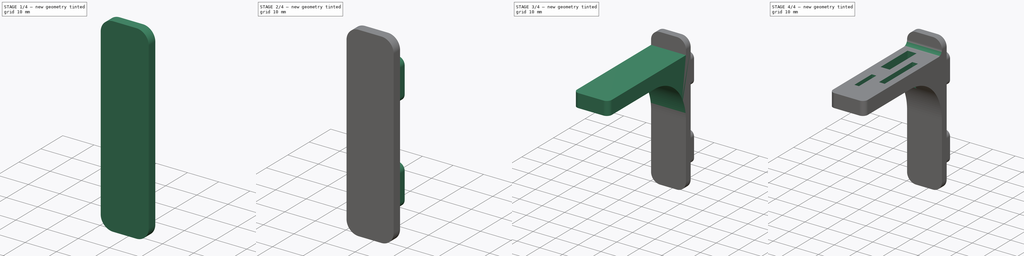
[diagram: build sequence overview — one tinted view per stage of 4, left to right]
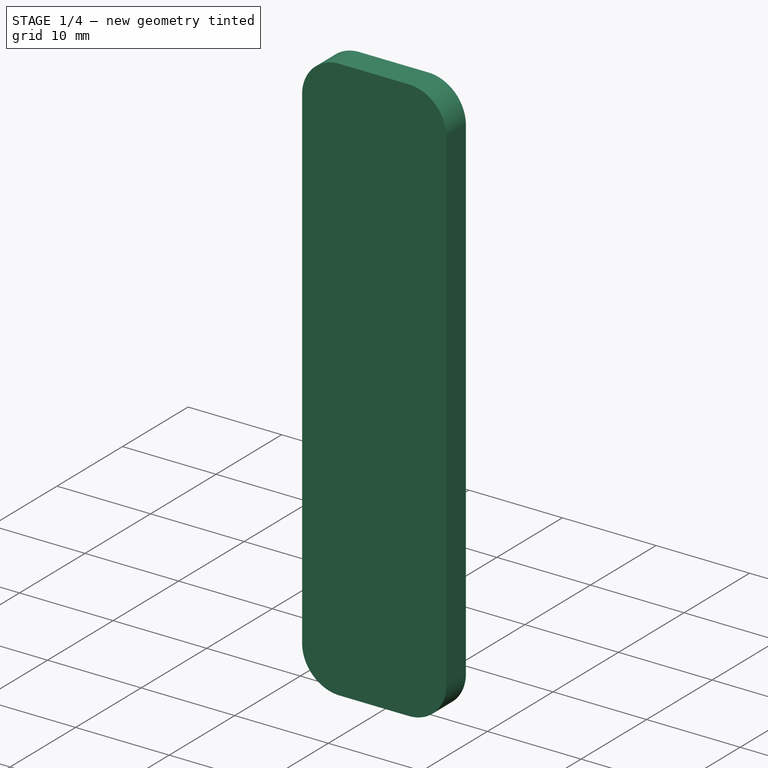
[diagram: stage 1 of 4 — iso view after this stage's code; geometry added in this stage tinted green]
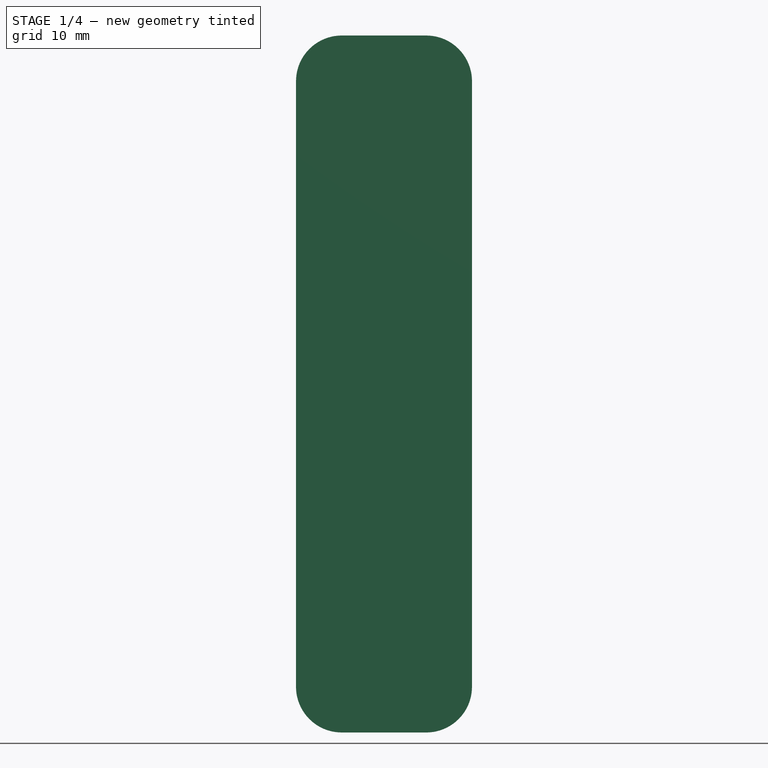
[diagram: stage 1 of 4 — front view after this stage's code; geometry added in this stage tinted green]
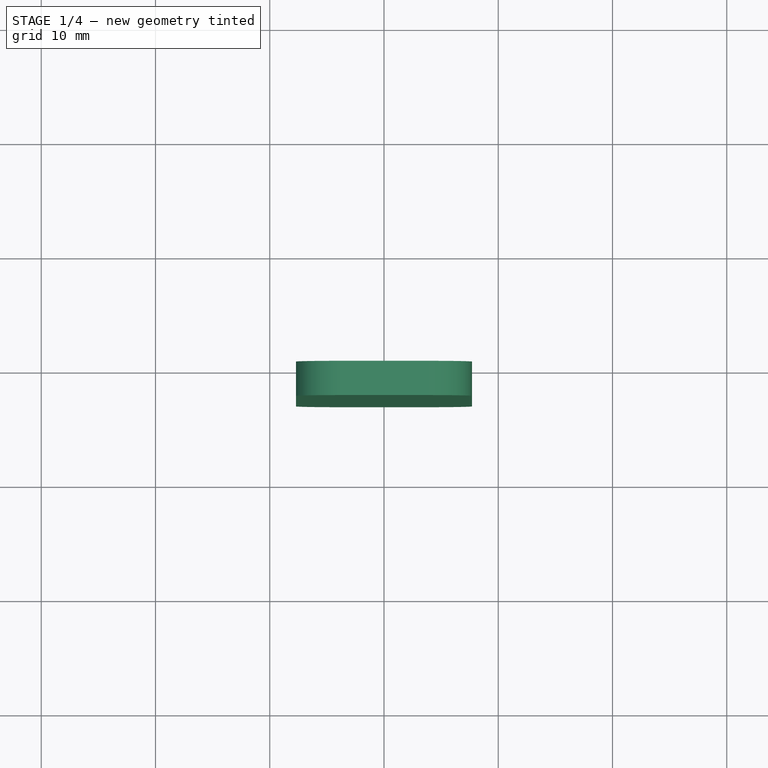
[diagram: stage 1 of 4 — top view after this stage's code; geometry added in this stage tinted green]
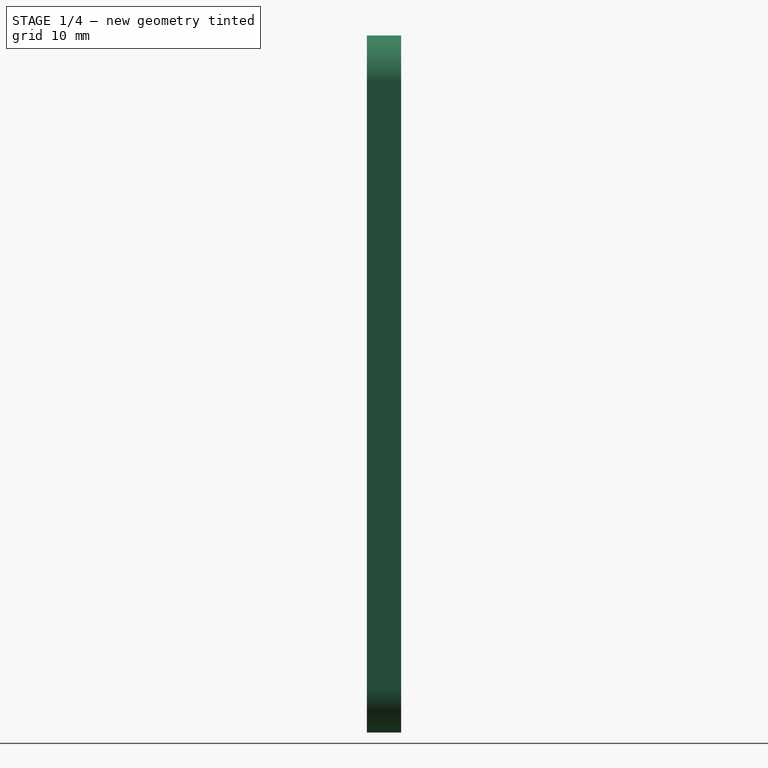
[diagram: stage 1 of 4 — right view after this stage's code; geometry added in this stage tinted green]
FCSTD DOCUMENT  (FreeCAD 1.0R39109 (Git))
Label: 01_Wrench_Holder_v2
License: All rights reserved
LicenseURL: https://en.wikipedia.org/wiki/All_rights_reserved
objects: Sketcher::SketchObject×5, PartDesign::Pad×4, PartDesign::Fillet×4, PartDesign::Pocket×1, PartDesign::Body×1
note: 38 computed .brp shape members not serialized (recipe doc carries the construction recipe); baked Part::Feature solids carry a one-line shape summary decoded from their .brp

FEATURE [Sketcher::SketchObject] Sketch
  ArcFitTolerance = 1e-06
  AttachmentSupport = -> [XZ_Plane]
  FullyConstrained = true
  MakeInternals = false
  MapMode = 5
  Placement = pos=(0,0,0) rot=(1,0,0;1.5708rad)
  sketch-geometry (4):
    g0: LineSegment StartX=-7.7 StartY=30.5 StartZ=0 EndX=-7.7 EndY=-30.5 EndZ=0
    g1: LineSegment StartX=-7.7 StartY=-30.5 StartZ=0 EndX=7.7 EndY=-30.5 EndZ=0
    g2: LineSegment StartX=7.7 StartY=-30.5 StartZ=0 EndX=7.7 EndY=30.5 EndZ=0
    g3: LineSegment StartX=7.7 StartY=30.5 StartZ=0 EndX=-7.7 EndY=30.5 EndZ=0
  constraints (12):
    c: Coincident(g0,g1)
    c: Coincident(g1,g2)
    c: Coincident(g2,g3)
    c: Coincident(g3,g0)
    c: Vertical(g0)
    c: Vertical(g2)
    c: Horizontal(g1)
    c: Horizontal(g3)
    c: Distance(g0,g2) = 15.4
    c: Distance(g1,g3) = 61
    c: DistanceY(g-1,g0) = 30.5
    c: DistanceX(g-1,g1) = 7.7
FEATURE [PartDesign::Pad] Pad
  Direction = (0,-1,2e-16)
  Length = 3
  Length2 = 10
  Placement = pos=(0,0,0) rot=(1,0,0;1.5708rad)
  Profile = -> Sketch
  ReferenceAxis = -> Sketch [N_Axis]
  Refine = true
  Suppressed = false
  Type = 0
FEATURE [PartDesign::Fillet] Fillet
  Base = -> Pad [Edge8,Edge1,Edge5,Edge2]
  BaseFeature = -> Pad
  Placement = pos=(0,0,0) rot=(1,0,0;1.5708rad)
  Radius = 4
  Refine = true
  SupportTransform = false
  Suppressed = false
  UseAllEdges = false
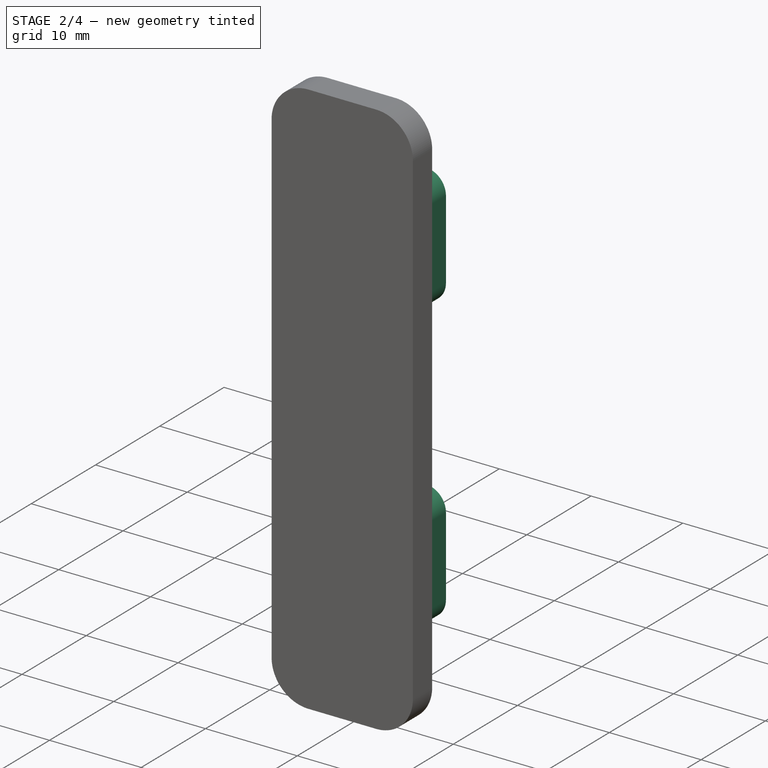
[diagram: stage 2 of 4 — iso view after this stage's code; geometry added in this stage tinted green]
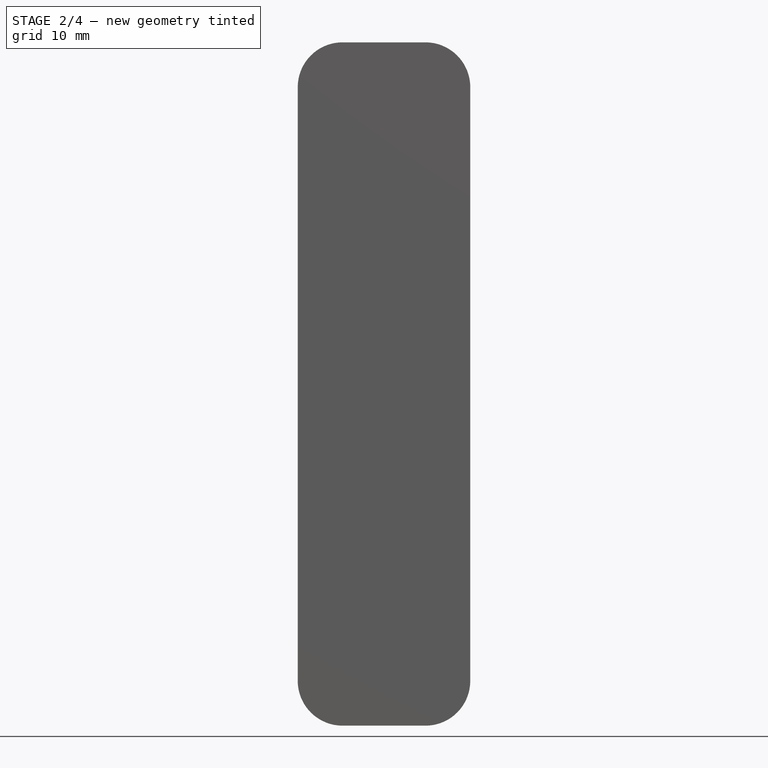
[diagram: stage 2 of 4 — front view after this stage's code; geometry added in this stage tinted green]
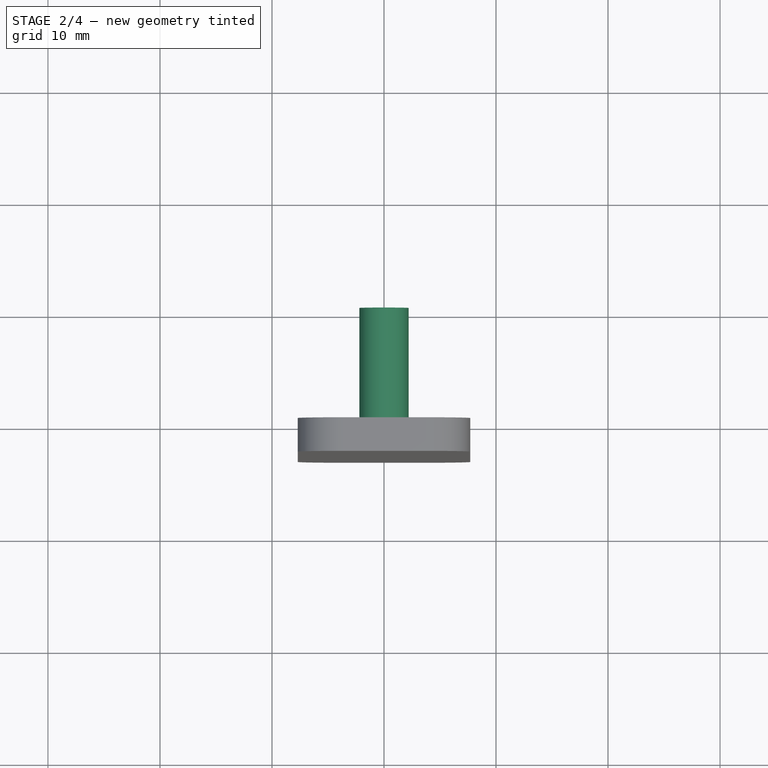
[diagram: stage 2 of 4 — top view after this stage's code; geometry added in this stage tinted green]
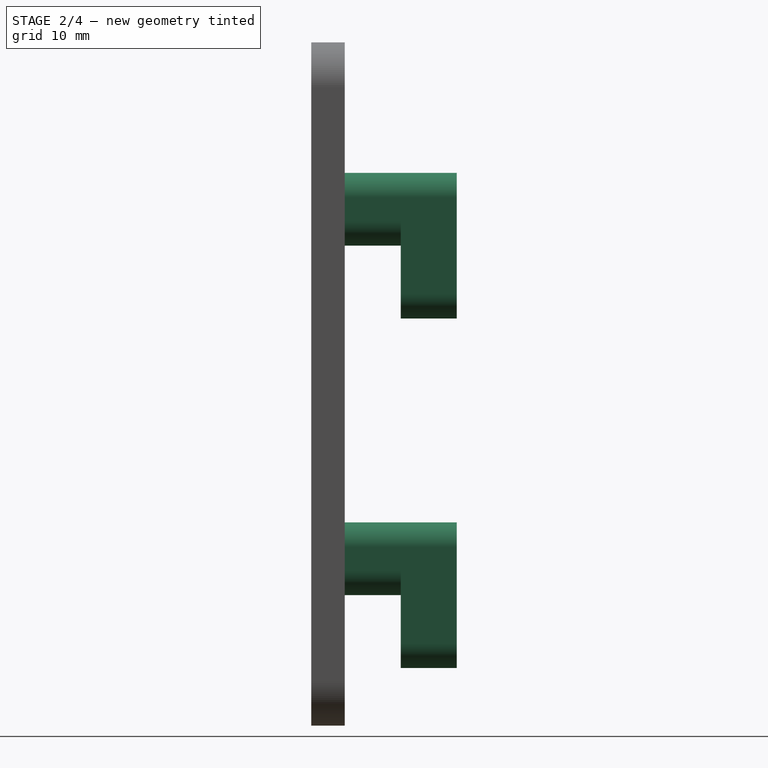
[diagram: stage 2 of 4 — right view after this stage's code; geometry added in this stage tinted green]
FEATURE [Sketcher::SketchObject] Sketch001
  ArcFitTolerance = 1e-06
  AttachmentSupport = -> [Fillet]
  FullyConstrained = true
  MakeInternals = false
  MapMode = 5
  Placement = pos=(0,0,0) rot=(-1,0,0;1.5708rad)
  sketch-geometry (12):
    g0: LineSegment StartX=-2.2 StartY=16.65 StartZ=0 EndX=-2.2 EndY=14.55 EndZ=0
    g1: LineSegment StartX=2.2 StartY=16.65 StartZ=0 EndX=2.2 EndY=14.55 EndZ=0
    g2: GeomPoint [constr] X=-1e-16 Y=16.65 Z=0
    g3: GeomPoint [constr] X=0 Y=14.55 Z=0
    g4: ArcOfCircle CenterX=-1e-16 CenterY=16.65 CenterZ=0 NormalX=0 NormalY=0 NormalZ=1 AngleXU=0 Radius=2.2 StartAngle=6e-16 EndAngle=3.14159
    g5: ArcOfCircle CenterX=0 CenterY=14.55 CenterZ=0 NormalX=0 NormalY=0 NormalZ=1 AngleXU=0 Radius=2.2 StartAngle=3.14159 EndAngle=6.28319
    g6: LineSegment StartX=-2.2 StartY=-14.55 StartZ=0 EndX=-2.2 EndY=-16.65 EndZ=0
    g7: LineSegment StartX=2.2 StartY=-14.55 StartZ=0 EndX=2.2 EndY=-16.65 EndZ=0
    g8: GeomPoint [constr] X=0 Y=-14.55 Z=0
    g9: GeomPoint [constr] X=1e-16 Y=-16.65 Z=0
    g10: ArcOfCircle CenterX=1e-16 CenterY=-16.65 CenterZ=0 NormalX=0 NormalY=0 NormalZ=1 AngleXU=0 Radius=2.2 StartAngle=3.14159 EndAngle=6.28319
    g11: ArcOfCircle CenterX=0 CenterY=-14.55 CenterZ=0 NormalX=0 NormalY=0 NormalZ=1 AngleXU=0 Radius=2.2 StartAngle=4.0087e-11 EndAngle=3.14159
  constraints (32):
    c: Distance(g0) = 2.1
    c: Vertical(g0)
    c: Distance(g1) = 2.1
    c: Vertical(g1)
    c: DistanceX(g0,g1) = 4.4
    c: Horizontal(g0,g2)
    c: Horizontal(g2,g1)
    c: Horizontal(g0,g3)
    c: DistanceX(g3,g-1) = 0
    c: DistanceY(g-1,g3) = 14.55
    c: Coincident(g0,g5)
    c: Coincident(g5,g1)
    c: Coincident(g4,g0)
    c: Coincident(g4,g1)
    c: Coincident(g4,g2)
    c: Coincident(g5,g3)
    c: Distance(g6) = 2.1
    c: Vertical(g6)
    c: Distance(g7) = 2.1
    c: Vertical(g7)
    c: DistanceX(g6,g7) = 4.4
    c: Horizontal(g6,g7)
    c: Horizontal(g8,g6)
    c: Horizontal(g9,g6)
    c: DistanceY(g8,g-1) = 14.55
    c: DistanceX(g-1,g8) = 0
    c: Coincident(g10,g6)
    c: Coincident(g10,g7)
    c: Coincident(g10,g9)
    c: Coincident(g11,g6)
    c: Coincident(g7,g11)
    c: Coincident(g11,g8)
FEATURE [PartDesign::Pad] Pad001
  BaseFeature = -> Fillet
  Direction = (0,1,2e-16)
  Length = 5
  Length2 = 10
  Placement = pos=(0,0,0) rot=(1,0,0;1.5708rad)
  Profile = -> Sketch001
  ReferenceAxis = -> Sketch001 [N_Axis]
  Refine = true
  Suppressed = false
  Type = 0
FEATURE [Sketcher::SketchObject] Sketch002
  ArcFitTolerance = 1e-06
  AttachmentSupport = -> [Pad001]
  FullyConstrained = true
  MakeInternals = false
  MapMode = 5
  Placement = pos=(0,5,0) rot=(-1,0,0;1.5708rad)
  sketch-geometry (12):
    g0: LineSegment StartX=-2.2 StartY=23.15 StartZ=0 EndX=-2.2 EndY=14.55 EndZ=0
    g1: LineSegment StartX=2.2 StartY=23.15 StartZ=0 EndX=2.2 EndY=14.55 EndZ=0
    g2: GeomPoint [constr] X=-1e-16 Y=23.15 Z=0
    g3: GeomPoint [constr] X=0 Y=14.55 Z=0
    g4: ArcOfCircle CenterX=0 CenterY=14.55 CenterZ=0 NormalX=0 NormalY=0 NormalZ=1 AngleXU=0 Radius=2.2 StartAngle=3.14159 EndAngle=6.28319
    g5: ArcOfCircle CenterX=-1e-16 CenterY=23.15 CenterZ=0 NormalX=0 NormalY=0 NormalZ=1 AngleXU=0 Radius=2.2 StartAngle=4.53e-13 EndAngle=3.14159
    g6: LineSegment StartX=-2.2 StartY=-8.05 StartZ=0 EndX=-2.2 EndY=-16.65 EndZ=0
    g7: LineSegment StartX=2.2 StartY=-8.05 StartZ=0 EndX=2.2 EndY=-16.65 EndZ=0
    g8: GeomPoint [constr] X=0 Y=-8.05 Z=0
    g9: GeomPoint [constr] X=2e-16 Y=-16.65 Z=0
    g10: ArcOfCircle CenterX=0 CenterY=-8.05 CenterZ=0 NormalX=0 NormalY=0 NormalZ=1 AngleXU=0 Radius=2.2 StartAngle=1e-16 EndAngle=3.14159
    g11: ArcOfCircle CenterX=2e-16 CenterY=-16.65 CenterZ=0 NormalX=0 NormalY=0 NormalZ=1 AngleXU=0 Radius=2.2 StartAngle=3.14159 EndAngle=6.28319
  constraints (32):
    c: Distance(g0) = 8.6
    c: Vertical(g0)
    c: Distance(g1) = 8.6
    c: Vertical(g1)
    c: DistanceX(g0,g1) = 4.4
    c: Horizontal(g0,g1)
    c: Horizontal(g0,g2)
    c: Horizontal(g0,g3)
    c: DistanceY(g-1,g3) = 14.55
    c: DistanceX(g-1,g3) = 0
    c: Coincident(g4,g0)
    c: Coincident(g1,g4)
    c: Coincident(g4,g3)
    c: Coincident(g5,g0)
    c: Coincident(g5,g1)
    c: Coincident(g5,g2)
    c: Distance(g6) = 8.6
    c: Vertical(g6)
    c: Distance(g7) = 8.6
    c: Vertical(g7)
    c: Horizontal(g6,g7)
    c: DistanceX(g6,g7) = 4.4
    c: Horizontal(g6,g8)
    c: Horizontal(g6,g9)
    c: DistanceX(g-1,g8) = 0
    c: Coincident(g10,g6)
    c: Coincident(g10,g7)
    c: Coincident(g10,g8)
    c: DistanceY(g9,g-1) = 16.65
    c: Coincident(g11,g6)
    c: Coincident(g11,g7)
    c: Coincident(g11,g9)
FEATURE [PartDesign::Pad] Pad002
  BaseFeature = -> Pad001
  Direction = (0,1,2e-16)
  Length = 5
  Length2 = 10
  Placement = pos=(0,0,0) rot=(1,0,0;1.5708rad)
  Profile = -> Sketch002
  ReferenceAxis = -> Sketch002 [N_Axis]
  Refine = true
  Suppressed = false
  Type = 0
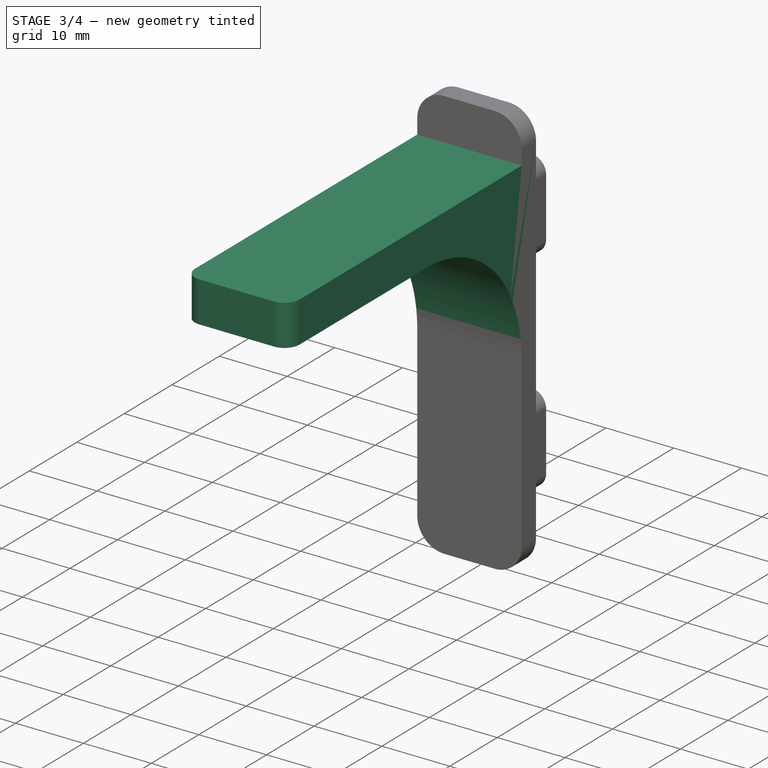
[diagram: stage 3 of 4 — iso view after this stage's code; geometry added in this stage tinted green]
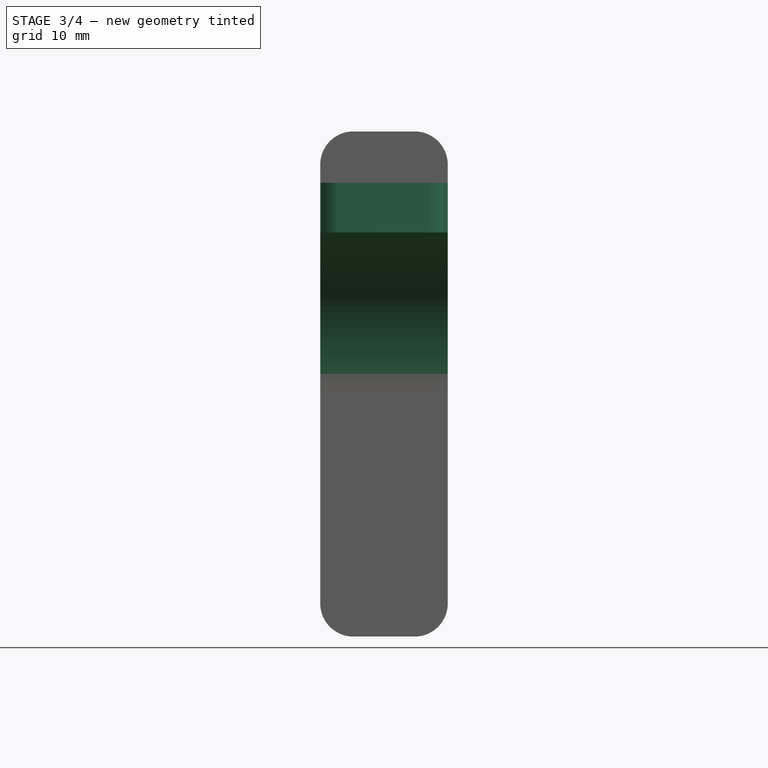
[diagram: stage 3 of 4 — front view after this stage's code; geometry added in this stage tinted green]
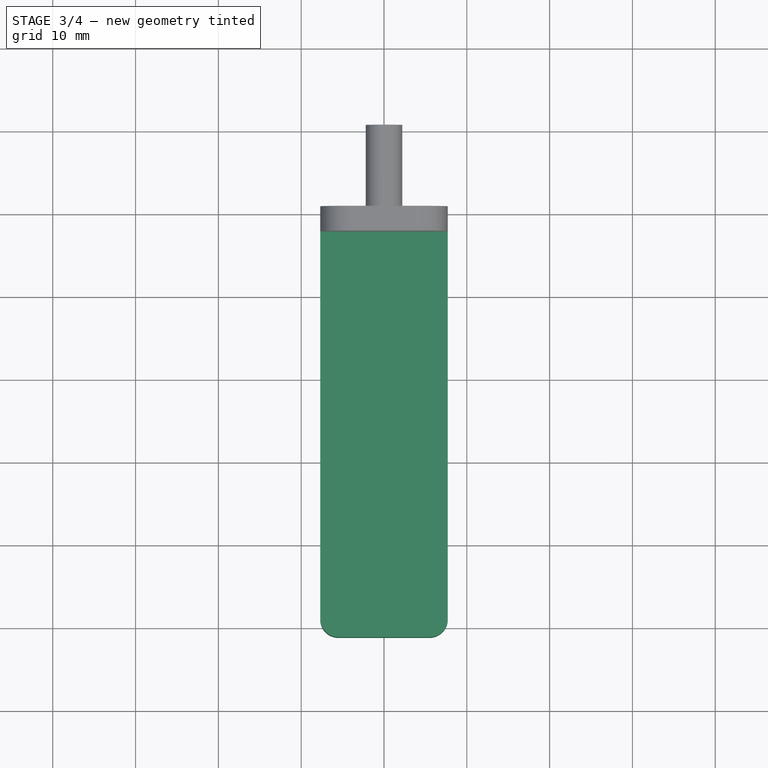
[diagram: stage 3 of 4 — top view after this stage's code; geometry added in this stage tinted green]
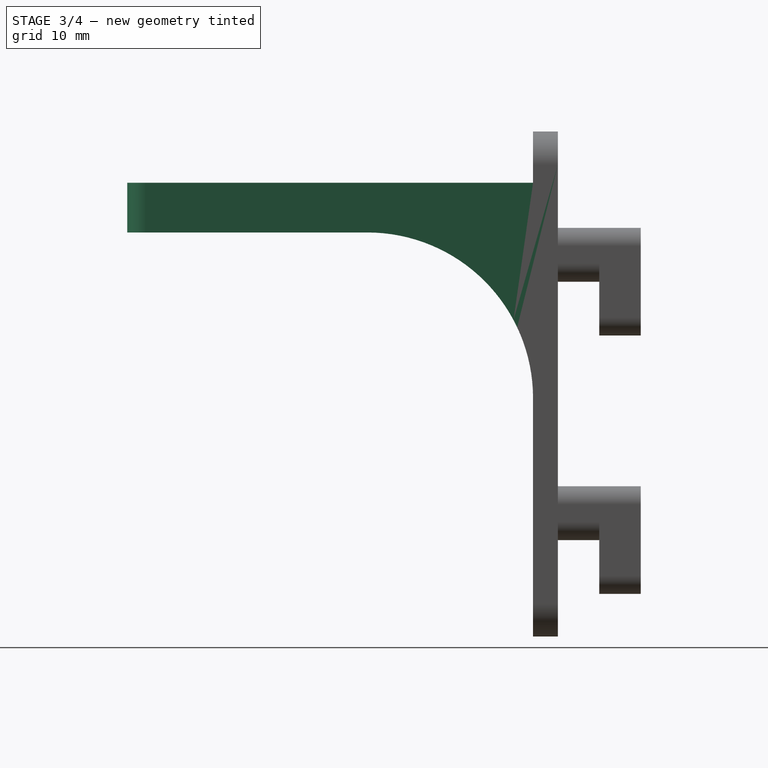
[diagram: stage 3 of 4 — right view after this stage's code; geometry added in this stage tinted green]
FEATURE [Sketcher::SketchObject] Sketch003
  ArcFitTolerance = 1e-06
  AttachmentSupport = -> [Pad002]
  FullyConstrained = true
  MakeInternals = false
  MapMode = 5
  Placement = pos=(0,-3,0) rot=(1,0,0;1.5708rad)
  sketch-geometry (4):
    g0: LineSegment StartX=-7.7 StartY=24.3 StartZ=0 EndX=-7.7 EndY=18.3 EndZ=0
    g1: LineSegment StartX=-7.7 StartY=18.3 StartZ=0 EndX=7.7 EndY=18.3 EndZ=0
    g2: LineSegment StartX=7.7 StartY=18.3 StartZ=0 EndX=7.7 EndY=24.3 EndZ=0
    g3: LineSegment StartX=7.7 StartY=24.3 StartZ=0 EndX=-7.7 EndY=24.3 EndZ=0
  constraints (12):
    c: Coincident(g0,g1)
    c: Coincident(g1,g2)
    c: Coincident(g2,g3)
    c: Coincident(g3,g0)
    c: Vertical(g0)
    c: Vertical(g2)
    c: Horizontal(g1)
    c: Horizontal(g3)
    c: Distance(g0,g2) = 15.4
    c: Distance(g1,g3) = 6
    c: DistanceY(g-1,g0) = 18.3
    c: DistanceX(g0,g-1) = 7.7
FEATURE [PartDesign::Pad] Pad003
  BaseFeature = -> Pad002
  Direction = (0,-1,2e-16)
  Length = 49
  Length2 = 10
  Placement = pos=(0,0,0) rot=(1,0,0;1.5708rad)
  Profile = -> Sketch003
  ReferenceAxis = -> Sketch003 [N_Axis]
  Refine = true
  Suppressed = false
  Type = 0
FEATURE [PartDesign::Fillet] Fillet001
  Base = -> Pad003 [Edge68,Edge67]
  BaseFeature = -> Pad003
  Placement = pos=(0,0,0) rot=(1,0,0;1.5708rad)
  Radius = 2.2
  Refine = true
  SupportTransform = false
  Suppressed = false
  UseAllEdges = false
FEATURE [PartDesign::Fillet] Fillet002
  Base = -> Fillet001 [Edge29]
  BaseFeature = -> Fillet001
  Placement = pos=(0,0,0) rot=(1,0,0;1.5708rad)
  Radius = 20
  Refine = true
  SupportTransform = false
  Suppressed = false
  UseAllEdges = false
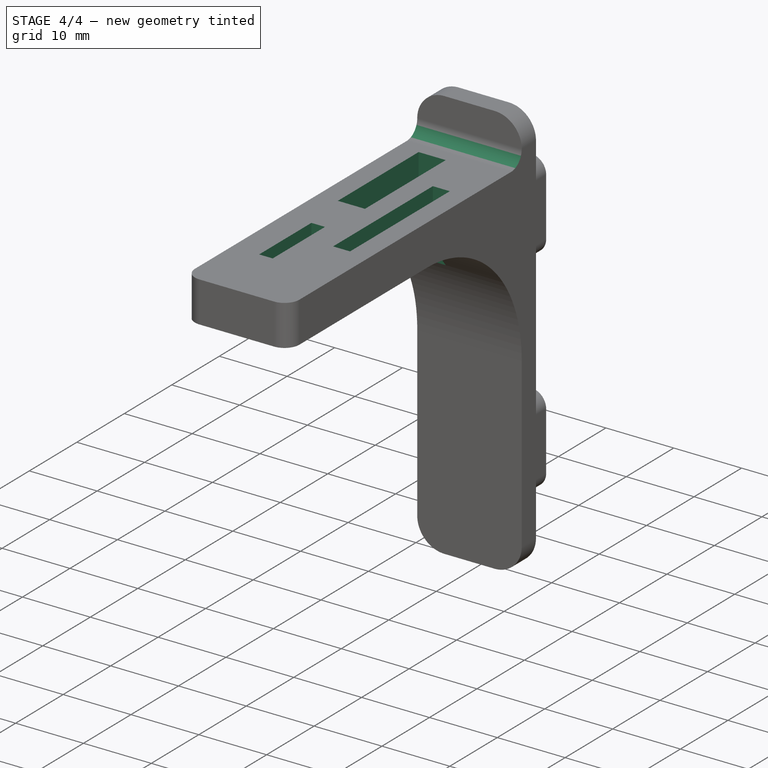
[diagram: stage 4 of 4 — iso view after this stage's code; geometry added in this stage tinted green]
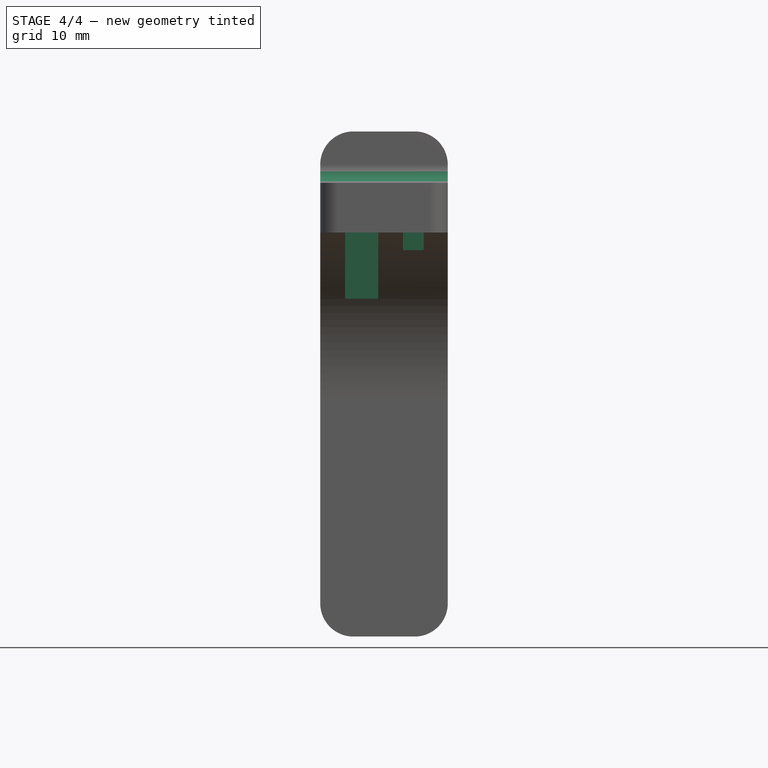
[diagram: stage 4 of 4 — front view after this stage's code; geometry added in this stage tinted green]
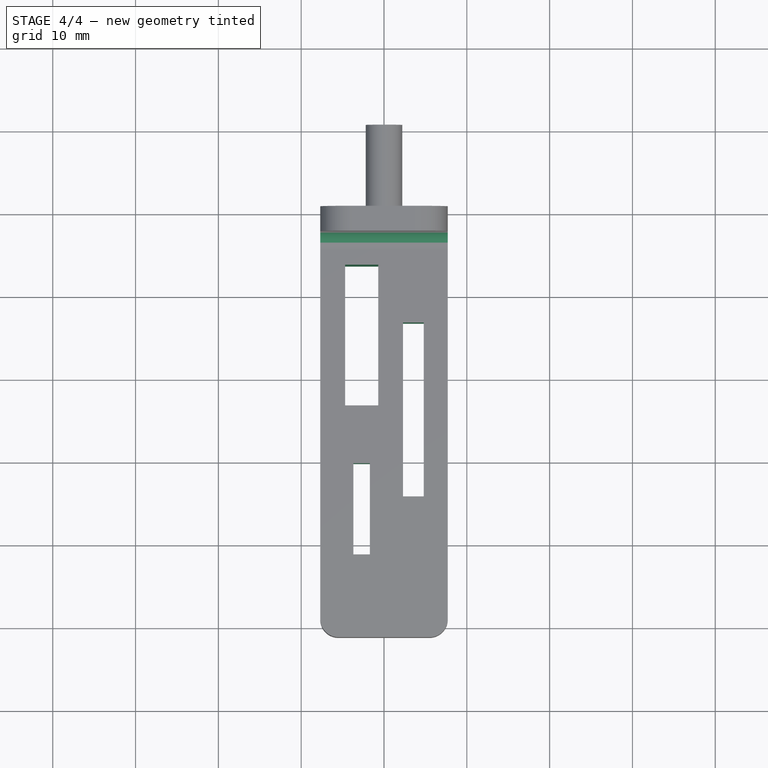
[diagram: stage 4 of 4 — top view after this stage's code; geometry added in this stage tinted green]
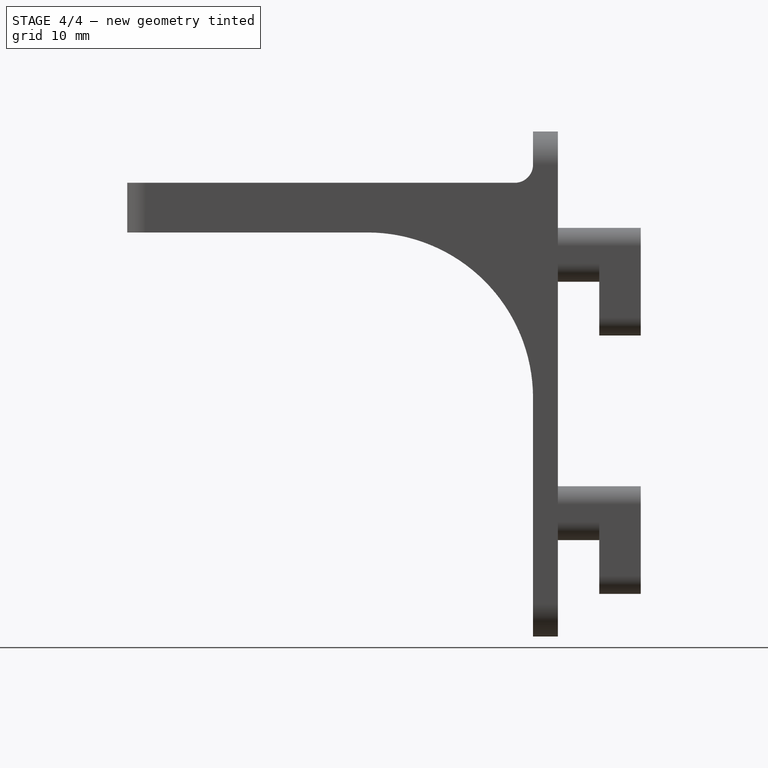
[diagram: stage 4 of 4 — right view after this stage's code; geometry added in this stage tinted green]
FEATURE [PartDesign::Fillet] Fillet003
  Base = -> Fillet002 [Edge23]
  BaseFeature = -> Fillet002
  Placement = pos=(0,0,0) rot=(1,0,0;1.5708rad)
  Radius = 2.2
  Refine = true
  SupportTransform = false
  Suppressed = false
  UseAllEdges = false
FEATURE [Sketcher::SketchObject] Sketch004
  ArcFitTolerance = 1e-06
  AttachmentSupport = -> [Fillet003]
  FullyConstrained = true
  MakeInternals = false
  MapMode = 5
  Placement = pos=(0,5.4e-15,24.3) rot=(0,0,1;3.14159rad)
  sketch-geometry (12):
    g0: LineSegment StartX=0.7 StartY=7 StartZ=0 EndX=4.7 EndY=7 EndZ=0
    g1: LineSegment StartX=4.7 StartY=7 StartZ=0 EndX=4.7 EndY=24 EndZ=0
    g2: LineSegment StartX=4.7 StartY=24 StartZ=0 EndX=0.7 EndY=24 EndZ=0
    g3: LineSegment StartX=0.7 StartY=24 StartZ=0 EndX=0.7 EndY=7 EndZ=0
    g4: LineSegment StartX=1.7 StartY=42 StartZ=0 EndX=1.7 EndY=31 EndZ=0
    g5: LineSegment StartX=1.7 StartY=31 StartZ=0 EndX=3.7 EndY=31 EndZ=0
    g6: LineSegment StartX=3.7 StartY=31 StartZ=0 EndX=3.7 EndY=42 EndZ=0
    g7: LineSegment StartX=3.7 StartY=42 StartZ=0 EndX=1.7 EndY=42 EndZ=0
    g8: LineSegment StartX=-4.8 StartY=35 StartZ=0 EndX=-4.8 EndY=14 EndZ=0
    g9: LineSegment StartX=-4.8 StartY=14 StartZ=0 EndX=-2.3 EndY=14 EndZ=0
    g10: LineSegment StartX=-2.3 StartY=14 StartZ=0 EndX=-2.3 EndY=35 EndZ=0
    g11: LineSegment StartX=-2.3 StartY=35 StartZ=0 EndX=-4.8 EndY=35 EndZ=0
  constraints (36):
    c: Coincident(g0,g1)
    c: Coincident(g1,g2)
    c: Coincident(g2,g3)
    c: Coincident(g3,g0)
    c: Horizontal(g0)
    c: Horizontal(g2)
    c: Vertical(g1)
    c: Vertical(g3)
    c: Distance(g1,g3) = 4
    c: Distance(g0,g2) = 17
    c: DistanceY(g-1,g0) = 7
    c: DistanceX(g-1,g0) = 0.7
    c: Coincident(g4,g5)
    c: Coincident(g5,g6)
    c: Coincident(g6,g7)
    c: Coincident(g7,g4)
    c: Vertical(g4)
    c: Vertical(g6)
    c: Horizontal(g5)
    c: Horizontal(g7)
    c: Distance(g4,g6) = 2
    c: Distance(g5,g7) = 11
    c: DistanceY(g1,g5) = 7
    c: DistanceX(g2,g4) = 1
    c: Coincident(g8,g9)
    c: Coincident(g9,g10)
    c: Coincident(g10,g11)
    c: Coincident(g11,g8)
    c: Vertical(g8)
    c: Vertical(g10)
    c: Horizontal(g9)
    c: Horizontal(g11)
    c: Distance(g8,g10) = 2.5
    c: Distance(g9,g11) = 21
    c: DistanceX(g9,g-1) = 2.3
    c: DistanceY(g-1,g9) = 14
FEATURE [PartDesign::Pocket] Pocket
  BaseFeature = -> Fillet003
  Direction = (0,0,-1)
  Length = 5
  Length2 = 5
  Placement = pos=(0,0,0) rot=(1,0,0;1.5708rad)
  Profile = -> Sketch004
  ReferenceAxis = -> Sketch004 [N_Axis]
  Refine = true
  Suppressed = false
  Type = 1
FEATURE [PartDesign::Body] Body
  AllowCompound = false
  Group = -> [Sketch,Pad,Fillet,Sketch001,Pad001,Sketch002,Pad002,Sketch003,Pad003,Fillet001,Fillet002,Fillet003,Sketch004,Pocket]
  Origin = -> Origin
  Tip = -> Pocket
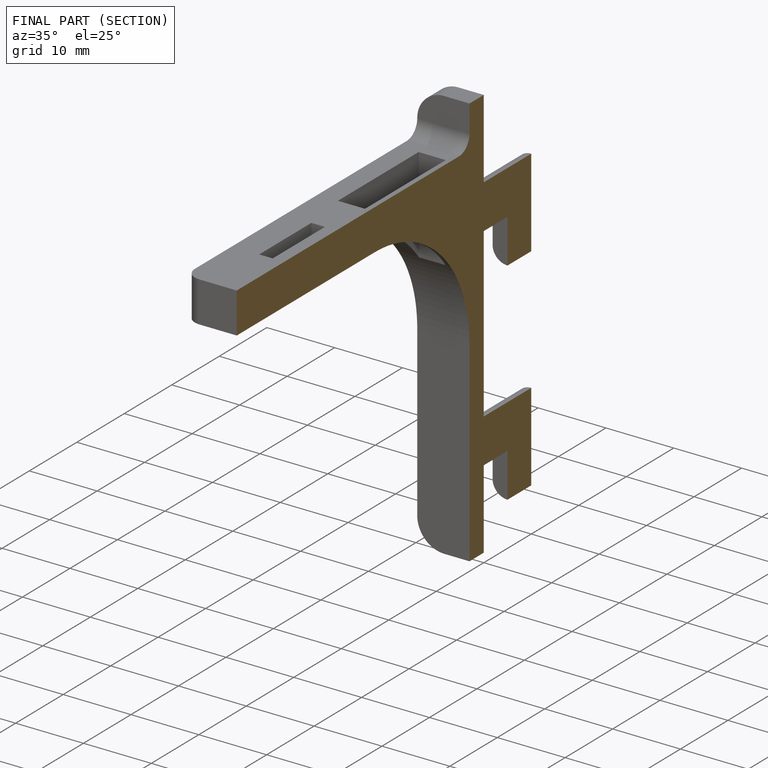
[diagram: finished part — half-section view (interior)]
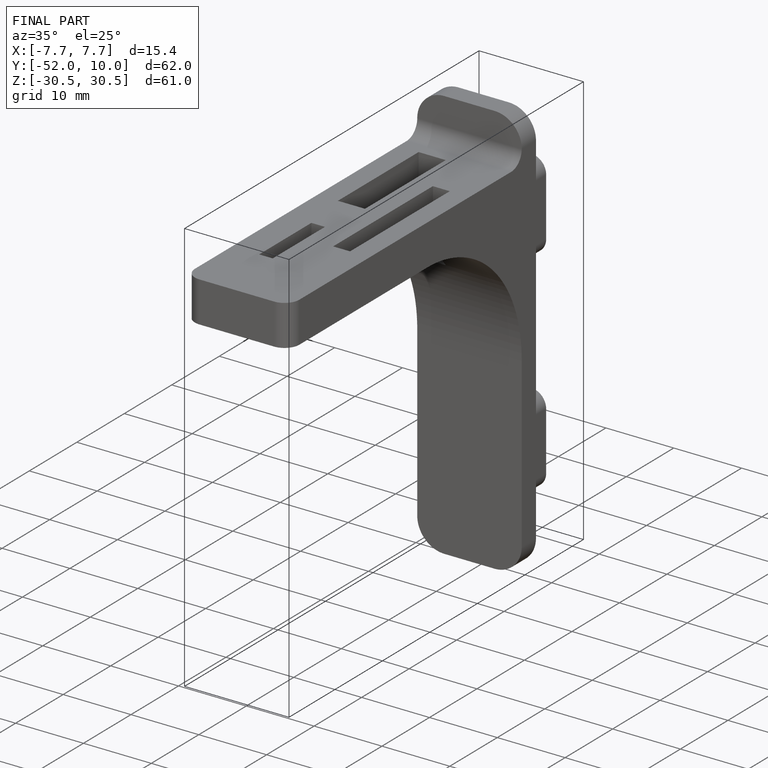
[diagram: finished part — iso view with bounding-box wireframe]
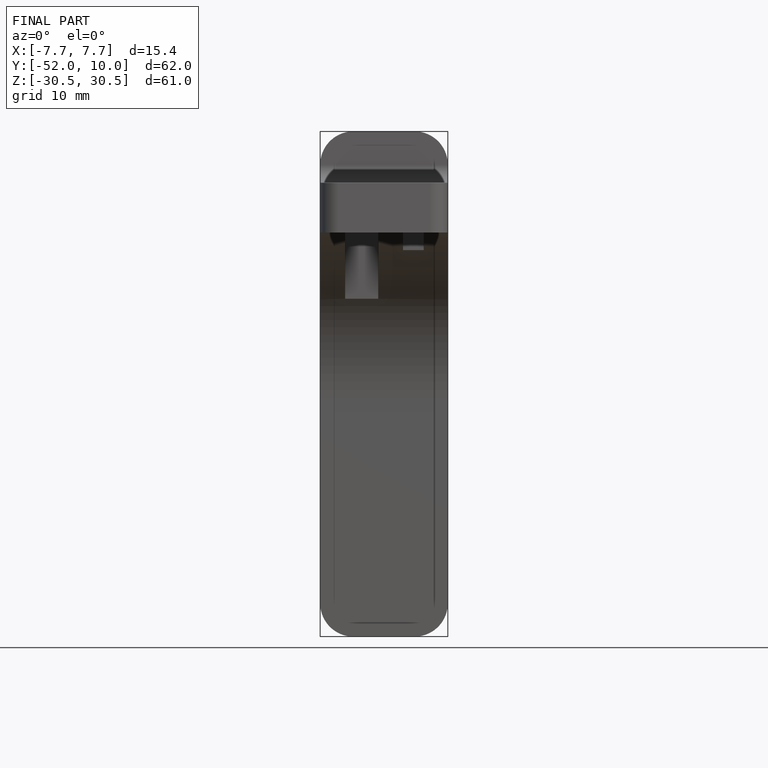
[diagram: finished part — front view with bounding-box wireframe]
